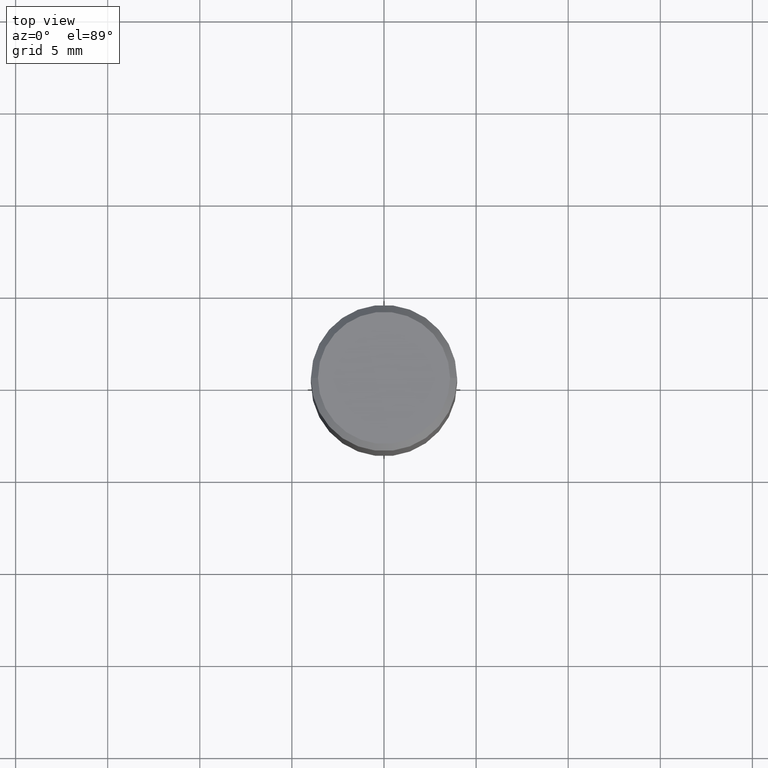
[diagram: clean part render]
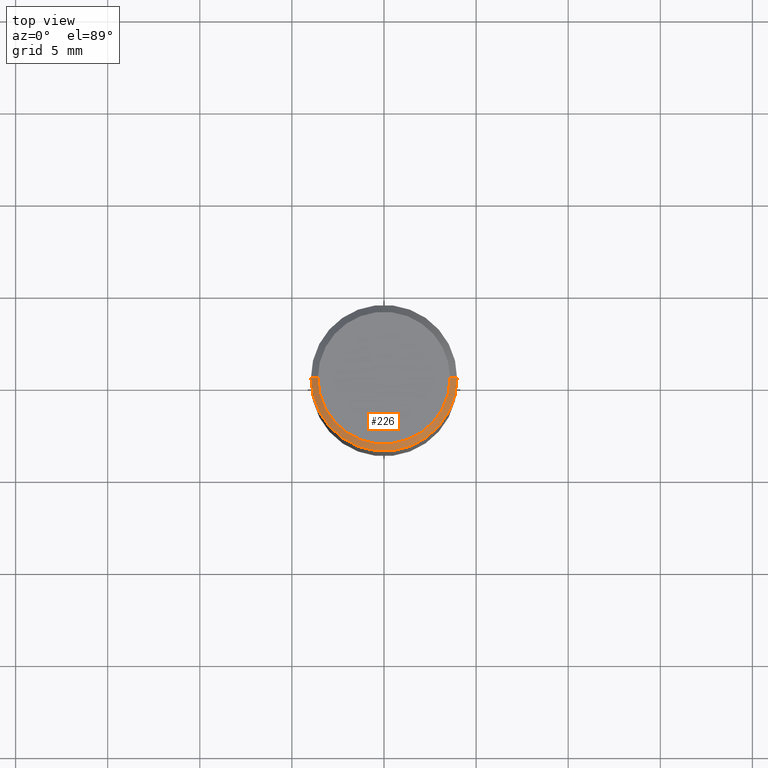
[diagram: same view with one face highlighted and labeled with its STEP entity id]
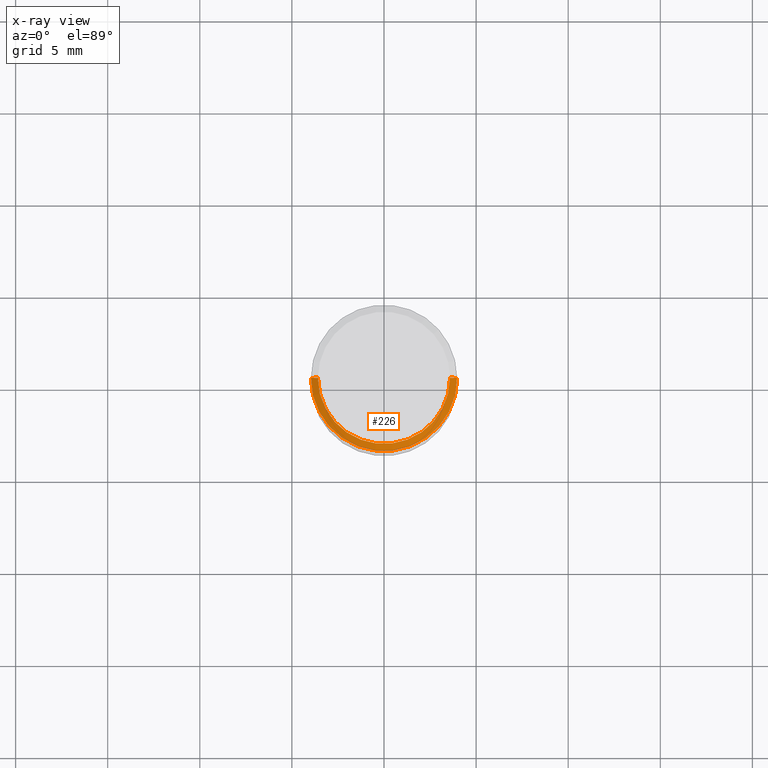
[diagram: x-ray of the same camera — body ghosted, the highlighted face saturated]
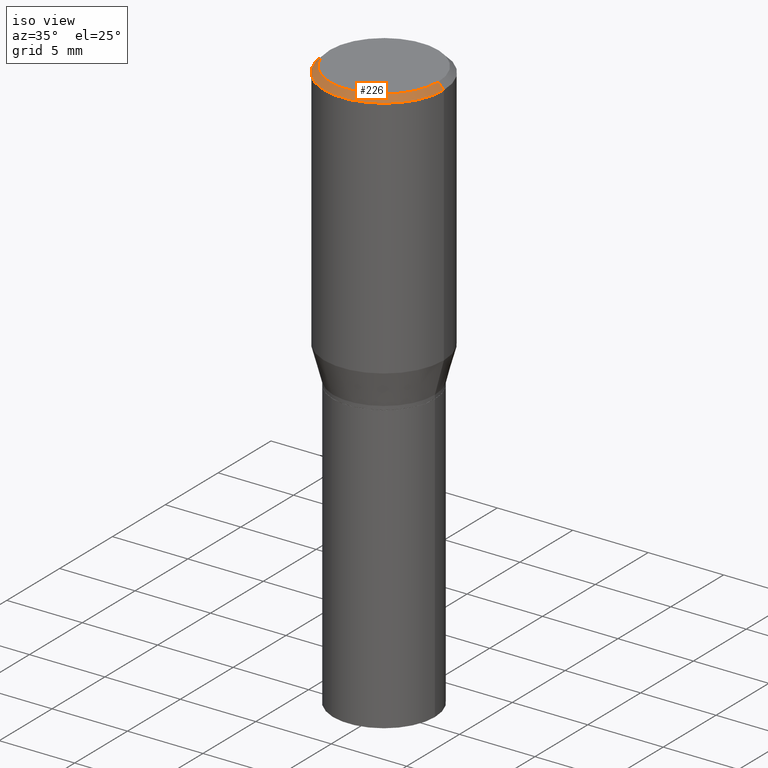
[diagram: same view with one face highlighted and labeled with its STEP entity id]
A machine part, top view. The second image highlights one B-rep face of the part: STEP entity #226.
The next image is the same camera in x-ray: the body ghosted, the highlighted face saturated — about 0% of this face is hidden behind the body in this view.
A second angle (iso view) of the same face is appended — the face is thin or edge-on in the first view.
In plain terms, the highlighted conical surface has half-angle 45 deg.
Its self-contained STEP definition (entity closure, byte-faithful):
#6 = CARTESIAN_POINT ( 'NONE',  ( -0.1412500000000000144, 1.012529588264508555E-15, -4.362760153143304915E-17 ) ) ;
#10 = ORIENTED_EDGE ( 'NONE', *, *, #233, .T. ) ;
#17 = EDGE_LOOP ( 'NONE', ( #354, #20, #10, #143 ) ) ;
#20 = ORIENTED_EDGE ( 'NONE', *, *, #30, .F. ) ;
#30 = EDGE_CURVE ( 'NONE', #43, #258, #201, .T. ) ;
#43 = VERTEX_POINT ( 'NONE', #6 ) ;
#57 = EDGE_CURVE ( 'NONE', #258, #179, #91, .T. ) ;
#91 = LINE ( 'NONE', #95, #132 ) ;
#95 = CARTESIAN_POINT ( 'NONE',  ( 0.1562500000000000000, -1.124325032234449083E-15, -0.01499999999999999944 ) ) ;
#99 = CARTESIAN_POINT ( 'NONE',  ( -0.1562500000000000000, 1.038715698305832094E-15, -0.01499999999999999944 ) ) ;
#127 = AXIS2_PLACEMENT_3D ( 'NONE', #328, #244, #356 ) ;
#132 = VECTOR ( 'NONE', #230, 39.37007874015748143 ) ;
#135 = AXIS2_PLACEMENT_3D ( 'NONE', #138, #396, #243 ) ;
#138 = CARTESIAN_POINT ( 'NONE',  ( 3.668203209277705088E-31, -5.237222008264718399E-17, -0.01499999999999999944 ) ) ;
#143 = ORIENTED_EDGE ( 'NONE', *, *, #333, .T. ) ;
#177 = CARTESIAN_POINT ( 'NONE',  ( 0.1412500000000000144, -1.046685187209839144E-15, -4.362760153141894826E-17 ) ) ;
#179 = VERTEX_POINT ( 'NONE', #339 ) ;
#195 = VECTOR ( 'NONE', #240, 39.37007874015748143 ) ;
#201 = CIRCLE ( 'NONE', #127, 0.1412500000000000144 ) ;
#208 = FACE_OUTER_BOUND ( 'NONE', #17, .T. ) ;
#209 = CARTESIAN_POINT ( 'NONE',  ( 3.668203209277705088E-31, -5.237222008264718399E-17, -0.01499999999999999944 ) ) ;
#213 = CIRCLE ( 'NONE', #135, 0.1562500000000000000 ) ;
#226 = ADVANCED_FACE ( 'NONE', ( #208 ), #286, .T. ) ;
#227 = AXIS2_PLACEMENT_3D ( 'NONE', #209, #278, #315 ) ;
#230 = DIRECTION ( 'NONE',  ( 0.7071067811865483499, -7.319954787623257623E-15, -0.7071067811865466846 ) ) ;
#233 = EDGE_CURVE ( 'NONE', #43, #410, #388, .T. ) ;
#240 = DIRECTION ( 'NONE',  ( -0.7071067811865483499, 2.468850131082265738E-15, -0.7071067811865466846 ) ) ;
#243 = DIRECTION ( 'NONE',  ( 1.000000000000000000, -6.982962677686266711E-15, 0.000000000000000000 ) ) ;
#244 = DIRECTION ( 'NONE',  ( -2.445468806185136597E-29, 3.491481338843145583E-15, 1.000000000000000000 ) ) ;
#255 = CARTESIAN_POINT ( 'NONE',  ( -0.1562500000000000000, -5.502990786655347834E-17, -0.01499999999999999944 ) ) ;
#258 = VERTEX_POINT ( 'NONE', #177 ) ;
#278 = DIRECTION ( 'NONE',  ( 2.445468806185136597E-29, -3.491481338843145583E-15, -1.000000000000000000 ) ) ;
#286 = CONICAL_SURFACE ( 'NONE', #227, 0.1562500000000000000, 0.7853981633974495002 ) ;
#315 = DIRECTION ( 'NONE',  ( -1.000000000000000000, 6.982962677686266711E-15, 0.000000000000000000 ) ) ;
#328 = CARTESIAN_POINT ( 'NONE',  ( 1.066899386337773103E-45, -1.523249566054587316E-31, -4.362760153142606033E-17 ) ) ;
#333 = EDGE_CURVE ( 'NONE', #410, #179, #213, .T. ) ;
#339 = CARTESIAN_POINT ( 'NONE',  ( 0.1562500000000000000, -1.143460138471126253E-15, -0.01499999999999999944 ) ) ;
#354 = ORIENTED_EDGE ( 'NONE', *, *, #57, .F. ) ;
#356 = DIRECTION ( 'NONE',  ( 1.000000000000000000, -6.982962677686265922E-15, 4.874209154772796007E-29 ) ) ;
#388 = LINE ( 'NONE', #99, #195 ) ;
#396 = DIRECTION ( 'NONE',  ( -2.445468806185136597E-29, 3.491481338843145583E-15, 1.000000000000000000 ) ) ;
#410 = VERTEX_POINT ( 'NONE', #255 ) ;